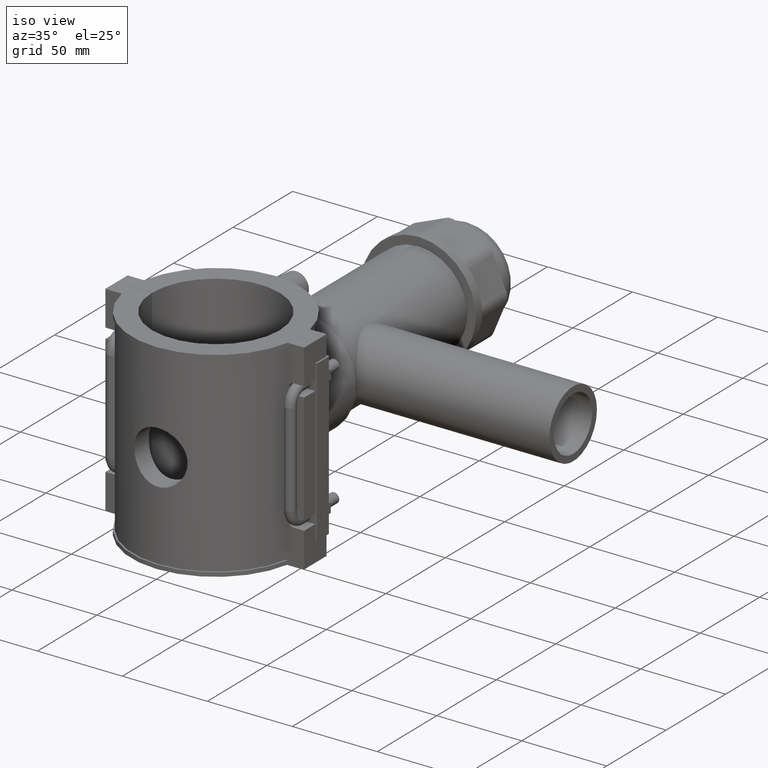
[diagram: clean part render]
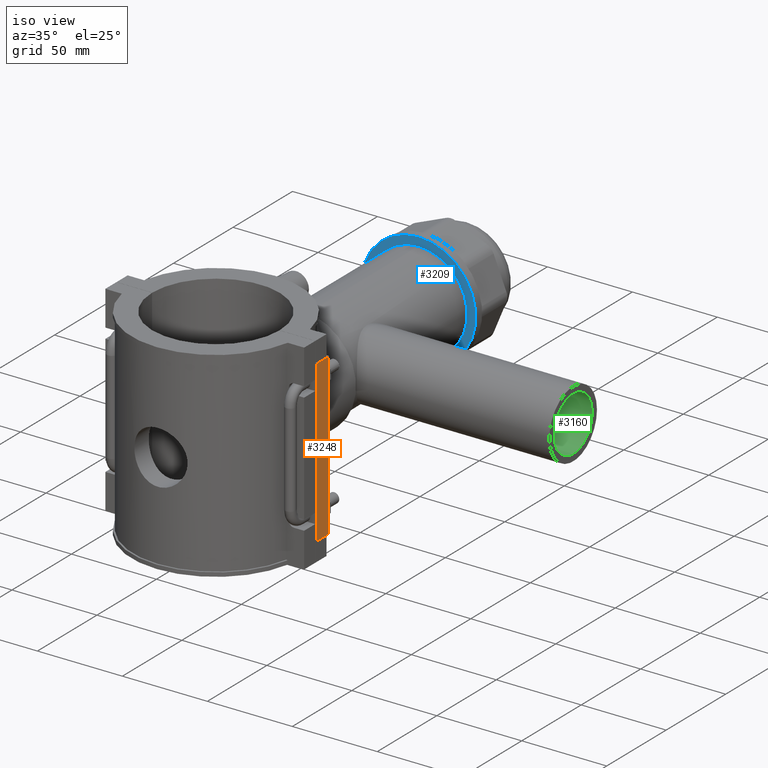
[diagram: same view with three faces highlighted in distinct colors, each labeled with its STEP entity id]
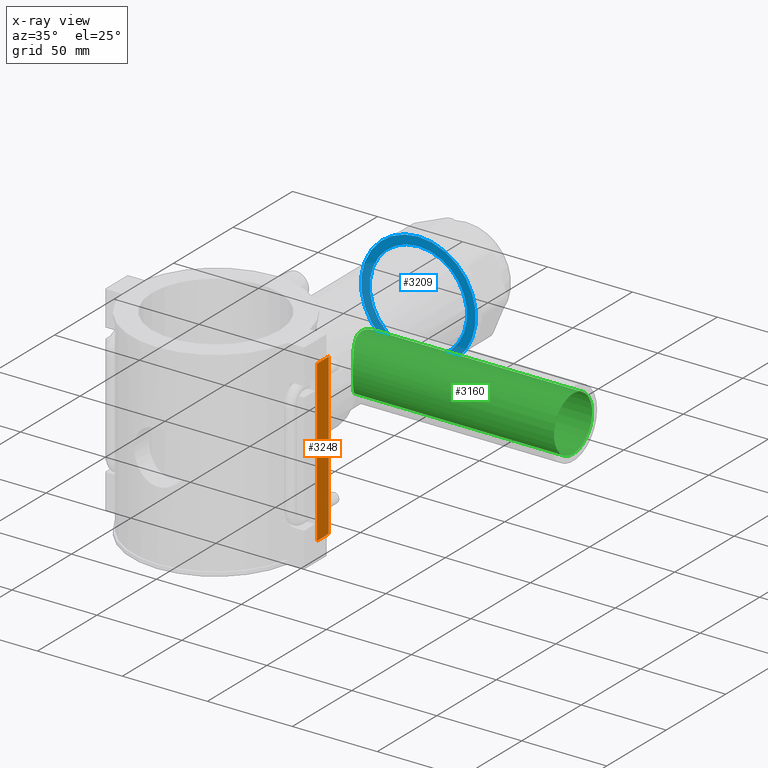
[diagram: x-ray of the same camera — body ghosted, the three highlighted faces saturated]
A machine part, iso view with three faces highlighted in distinct colors.
The next image is the same camera in x-ray (body ghosted, the three faces saturated) — at least one of them is partly hidden behind the body in this view.
Their STEP definitions:

[orange] entity #3248 — the highlighted planar face has unit normal (1, 0, 0).
#194=LINE('',#5989,#481);
#210=LINE('',#6052,#497);
#213=LINE('',#6058,#500);
#214=LINE('',#6059,#501);
#481=VECTOR('',#4141,94.4);
#497=VECTOR('',#4167,9.82500000000009);
#500=VECTOR('',#4172,9.82500000000009);
#501=VECTOR('',#4173,94.4);
#868=FACE_OUTER_BOUND('',#1086,.T.);
#1086=EDGE_LOOP('',(#2571,#2572,#2573,#2574));
#1519=VERTEX_POINT('',#5986);
#1520=VERTEX_POINT('',#5988);
#1538=VERTEX_POINT('',#6051);
#1540=VERTEX_POINT('',#6057);
#1898=EDGE_CURVE('',#1519,#1520,#194,.T.);
#1921=EDGE_CURVE('',#1520,#1538,#210,.T.);
#1924=EDGE_CURVE('',#1540,#1519,#213,.T.);
#1925=EDGE_CURVE('',#1538,#1540,#214,.T.);
#2571=ORIENTED_EDGE('',*,*,#1898,.F.);
#2572=ORIENTED_EDGE('',*,*,#1924,.F.);
#2573=ORIENTED_EDGE('',*,*,#1925,.F.);
#2574=ORIENTED_EDGE('',*,*,#1921,.F.);
#3090=PLANE('',#3517);
#3248=ADVANCED_FACE('',(#868),#3090,.T.);
#3517=AXIS2_PLACEMENT_3D('',#6056,#4170,#4171);
#4141=DIRECTION('',(0.,0.,-1.));
#4167=DIRECTION('',(0.,-1.,0.));
#4170=DIRECTION('center_axis',(1.,0.,0.));
#4171=DIRECTION('ref_axis',(0.,1.,0.));
#4172=DIRECTION('',(0.,1.,0.));
#4173=DIRECTION('',(0.,0.,1.));
#5986=CARTESIAN_POINT('',(59.5,9.8750000000001,47.2));
#5988=CARTESIAN_POINT('',(59.5,9.8750000000001,-47.2));
#5989=CARTESIAN_POINT('',(59.5,9.8750000000001,0.));
#6051=CARTESIAN_POINT('',(59.5,0.0500000000000078,-47.2));
#6052=CARTESIAN_POINT('',(59.5,0.0500000000000078,-47.2));
#6056=CARTESIAN_POINT('Origin',(59.5,0.0500000000000081,0.));
#6057=CARTESIAN_POINT('',(59.5,0.0500000000000078,47.2));
#6058=CARTESIAN_POINT('',(59.5,0.0500000000000078,47.2));
#6059=CARTESIAN_POINT('',(59.5,0.0500000000000081,0.));

[blue] entity #3209 — the highlighted planar face has unit normal (0, -1, -0).
#635=FACE_BOUND('',#1035,.T.);
#829=FACE_OUTER_BOUND('',#1034,.T.);
#1034=EDGE_LOOP('',(#2334));
#1035=EDGE_LOOP('',(#2335));
#1259=CIRCLE('',#3452,28.6875);
#1260=CIRCLE('',#3454,33.75);
#1411=VERTEX_POINT('',#5072);
#1412=VERTEX_POINT('',#5075);
#1761=EDGE_CURVE('',#1411,#1411,#1259,.T.);
#1762=EDGE_CURVE('',#1412,#1412,#1260,.T.);
#2334=ORIENTED_EDGE('',*,*,#1762,.F.);
#2335=ORIENTED_EDGE('',*,*,#1761,.T.);
#3067=PLANE('',#3453);
#3209=ADVANCED_FACE('',(#829,#635),#3067,.T.);
#3452=AXIS2_PLACEMENT_3D('',#5073,#3931,#3932);
#3453=AXIS2_PLACEMENT_3D('',#5074,#3933,#3934);
#3454=AXIS2_PLACEMENT_3D('',#5076,#3935,#3936);
#3931=DIRECTION('center_axis',(0.,1.,3.06161699786838E-16));
#3932=DIRECTION('ref_axis',(1.,0.,0.));
#3933=DIRECTION('center_axis',(0.,-1.,-3.06161699786838E-16));
#3934=DIRECTION('ref_axis',(0.,0.,-1.));
#3935=DIRECTION('center_axis',(0.,1.,3.06161699786838E-16));
#3936=DIRECTION('ref_axis',(1.,0.,0.));
#5072=CARTESIAN_POINT('',(0.,170.25,28.6875000000001));
#5073=CARTESIAN_POINT('Origin',(0.,170.25,4.06429656467028E-14));
#5074=CARTESIAN_POINT('Origin',(0.,170.25,33.75));
#5075=CARTESIAN_POINT('',(0.,170.25,33.75));
#5076=CARTESIAN_POINT('Origin',(0.,170.25,4.06429656467028E-14));

[green] entity #3160 — the highlighted cylindrical surface (bore or boss wall) has radius 16 mm, axis along (1, 0, 0).
#626=FACE_BOUND('',#977,.T.);
#681=B_SPLINE_CURVE_WITH_KNOTS('',3,(#4645,#4646,#4647,#4648,#4649,#4650,
#4651,#4652,#4653,#4654,#4655,#4656,#4657,#4658,#4659,#4660,#4661,#4662,
#4663,#4664,#4665,#4666,#4667,#4668,#4669,#4670,#4671,#4672,#4673,#4674,
#4675,#4676,#4677,#4678,#4679,#4680,#4681,#4682,#4683,#4684,#4685,#4686,
#4687,#4688,#4689,#4690,#4691,#4692,#4693,#4694,#4695,#4696,#4697,#4698,
#4699,#4700,#4701,#4702),.UNSPECIFIED.,.T.,.F.,(4,2,2,2,2,2,2,2,2,2,2,2,
2,2,2,2,2,2,2,2,2,2,2,2,2,2,2,2,4),(0.,0.316324696681249,0.632649393362498,
1.265298786725,1.57784248054175,1.89038617435851,2.20292986817527,2.51547356199203,
2.82801725580878,3.14056094962554,3.4531046434423,3.76564833725906,4.39829773062155,
4.7146224273028,5.03094712398405,5.3472718206653,5.66359651734655,6.29624591070905,
6.60878960452581,6.92133329834256,7.23387699215932,7.54642068597608,7.85896437979283,
8.17150807360959,8.48405176742635,8.79659546124311,9.42924485460561,9.74556955128686,
10.0618942479681),.UNSPECIFIED.);
#730=CYLINDRICAL_SURFACE('',#3357,16.);
#780=FACE_OUTER_BOUND('',#976,.T.);
#976=EDGE_LOOP('',(#2110));
#977=EDGE_LOOP('',(#2111));
#1221=CIRCLE('',#3358,16.);
#1336=VERTEX_POINT('',#4644);
#1341=VERTEX_POINT('',#4844);
#1646=EDGE_CURVE('',#1336,#1336,#681,.T.);
#1651=EDGE_CURVE('',#1341,#1341,#1221,.T.);
#2110=ORIENTED_EDGE('',*,*,#1646,.T.);
#2111=ORIENTED_EDGE('',*,*,#1651,.T.);
#3160=ADVANCED_FACE('',(#780,#626),#730,.F.);
#3357=AXIS2_PLACEMENT_3D('',#4843,#3677,#3678);
#3358=AXIS2_PLACEMENT_3D('',#4845,#3679,#3680);
#3677=DIRECTION('center_axis',(1.,0.,0.));
#3678=DIRECTION('ref_axis',(0.,1.,0.));
#3679=DIRECTION('center_axis',(1.,0.,0.));
#3680=DIRECTION('ref_axis',(0.,0.,-1.));
#4644=CARTESIAN_POINT('',(17.3821927558061,97.5,-16.));
#4645=CARTESIAN_POINT('Ctrl Pts',(17.3821927558061,97.5,-16.));
#4646=CARTESIAN_POINT('Ctrl Pts',(17.3821927558061,96.4455843443959,-16.));
#4647=CARTESIAN_POINT('Ctrl Pts',(17.4811166464187,95.3759408501837,-15.8943860642894));
#4648=CARTESIAN_POINT('Ctrl Pts',(17.8573774120586,93.2800334309973,-15.4704563182089));
#4649=CARTESIAN_POINT('Ctrl Pts',(18.1334788221805,92.2534956223917,-15.1523990290198));
#4650=CARTESIAN_POINT('Ctrl Pts',(19.1196921470526,89.3271214172998,-13.9171947723531));
#4651=CARTESIAN_POINT('Ctrl Pts',(19.9808934097593,87.577546680546,-12.7049636785155));
#4652=CARTESIAN_POINT('Ctrl Pts',(21.1147653000152,85.4989786901373,-10.6263956881068));
#4653=CARTESIAN_POINT('Ctrl Pts',(21.4949432389708,84.8467087793682,-9.84701669718087));
#4654=CARTESIAN_POINT('Ctrl Pts',(22.1990768601424,83.6843491862075,-8.13617288582367));
#4655=CARTESIAN_POINT('Ctrl Pts',(22.5226449582781,83.174191673554,-7.20459465591329));
#4656=CARTESIAN_POINT('Ctrl Pts',(23.0586361535778,82.3454642341858,-5.24166229957178));
#4657=CARTESIAN_POINT('Ctrl Pts',(23.2713151222953,82.0262119310514,-4.20820249666863));
#4658=CARTESIAN_POINT('Ctrl Pts',(23.5545775131991,81.603392452845,-2.10830594464195));
#4659=CARTESIAN_POINT('Ctrl Pts',(23.625,81.5,-1.04181231272253));
#4660=CARTESIAN_POINT('Ctrl Pts',(23.625,81.5,1.04181231272252));
#4661=CARTESIAN_POINT('Ctrl Pts',(23.5545775131991,81.603392452845,2.10830594464194));
#4662=CARTESIAN_POINT('Ctrl Pts',(23.2713151222953,82.0262119310514,4.20820249666862));
#4663=CARTESIAN_POINT('Ctrl Pts',(23.0586361535779,82.3454642341858,5.24166229957178));
#4664=CARTESIAN_POINT('Ctrl Pts',(22.5226449582782,83.174191673554,7.20459465591329));
#4665=CARTESIAN_POINT('Ctrl Pts',(22.1990768601424,83.6843491862074,8.13617288582366));
#4666=CARTESIAN_POINT('Ctrl Pts',(21.4949432389709,84.8467087793682,9.84701669718086));
#4667=CARTESIAN_POINT('Ctrl Pts',(21.1147653000153,85.4989786901373,10.6263956881068));
#4668=CARTESIAN_POINT('Ctrl Pts',(19.9808934097593,87.577546680546,12.7049636785155));
#4669=CARTESIAN_POINT('Ctrl Pts',(19.1196921470527,89.3271214172997,13.9171947723531));
#4670=CARTESIAN_POINT('Ctrl Pts',(18.1334788221806,92.2534956223917,15.1523990290199));
#4671=CARTESIAN_POINT('Ctrl Pts',(17.8573774120586,93.2800334309972,15.4704563182089));
#4672=CARTESIAN_POINT('Ctrl Pts',(17.4811166464187,95.3759408501836,15.8943860642894));
#4673=CARTESIAN_POINT('Ctrl Pts',(17.3821927558062,96.4455843443959,16.));
#4674=CARTESIAN_POINT('Ctrl Pts',(17.3821927558062,98.5544156556041,16.));
#4675=CARTESIAN_POINT('Ctrl Pts',(17.4811166464187,99.6240591498163,15.8943860642894));
#4676=CARTESIAN_POINT('Ctrl Pts',(17.8573774120586,101.719966569003,15.4704563182089));
#4677=CARTESIAN_POINT('Ctrl Pts',(18.1334788221806,102.746504377608,15.1523990290198));
#4678=CARTESIAN_POINT('Ctrl Pts',(19.1196921470527,105.6728785827,13.9171947723531));
#4679=CARTESIAN_POINT('Ctrl Pts',(19.9808934097593,107.422453319454,12.7049636785155));
#4680=CARTESIAN_POINT('Ctrl Pts',(21.1147653000153,109.501021309863,10.6263956881068));
#4681=CARTESIAN_POINT('Ctrl Pts',(21.4949432389709,110.153291220632,9.84701669718087));
#4682=CARTESIAN_POINT('Ctrl Pts',(22.1990768601424,111.315650813793,8.13617288582367));
#4683=CARTESIAN_POINT('Ctrl Pts',(22.5226449582782,111.825808326446,7.20459465591329));
#4684=CARTESIAN_POINT('Ctrl Pts',(23.0586361535779,112.654535765814,5.24166229957178));
#4685=CARTESIAN_POINT('Ctrl Pts',(23.2713151222953,112.973788068949,4.20820249666863));
#4686=CARTESIAN_POINT('Ctrl Pts',(23.5545775131991,113.396607547155,2.10830594464195));
#4687=CARTESIAN_POINT('Ctrl Pts',(23.625,113.5,1.04181231272253));
#4688=CARTESIAN_POINT('Ctrl Pts',(23.625,113.5,-1.04181231272252));
#4689=CARTESIAN_POINT('Ctrl Pts',(23.5545775131991,113.396607547155,-2.10830594464194));
#4690=CARTESIAN_POINT('Ctrl Pts',(23.2713151222953,112.973788068949,-4.20820249666863));
#4691=CARTESIAN_POINT('Ctrl Pts',(23.0586361535778,112.654535765814,-5.24166229957178));
#4692=CARTESIAN_POINT('Ctrl Pts',(22.5226449582781,111.825808326446,-7.2045946559133));
#4693=CARTESIAN_POINT('Ctrl Pts',(22.1990768601424,111.315650813793,-8.13617288582367));
#4694=CARTESIAN_POINT('Ctrl Pts',(21.4949432389708,110.153291220632,-9.84701669718087));
#4695=CARTESIAN_POINT('Ctrl Pts',(21.1147653000152,109.501021309863,-10.6263956881068));
#4696=CARTESIAN_POINT('Ctrl Pts',(19.9808934097593,107.422453319454,-12.7049636785155));
#4697=CARTESIAN_POINT('Ctrl Pts',(19.1196921470526,105.6728785827,-13.9171947723531));
#4698=CARTESIAN_POINT('Ctrl Pts',(18.1334788221805,102.746504377608,-15.1523990290199));
#4699=CARTESIAN_POINT('Ctrl Pts',(17.8573774120586,101.719966569003,-15.470456318209));
#4700=CARTESIAN_POINT('Ctrl Pts',(17.4811166464187,99.6240591498163,-15.8943860642894));
#4701=CARTESIAN_POINT('Ctrl Pts',(17.3821927558061,98.5544156556041,-16.));
#4702=CARTESIAN_POINT('Ctrl Pts',(17.3821927558061,97.5,-16.));
#4843=CARTESIAN_POINT('Origin',(71.,97.5,0.));
#4844=CARTESIAN_POINT('',(142.,97.5,-16.));
#4845=CARTESIAN_POINT('Origin',(142.,97.5,0.));